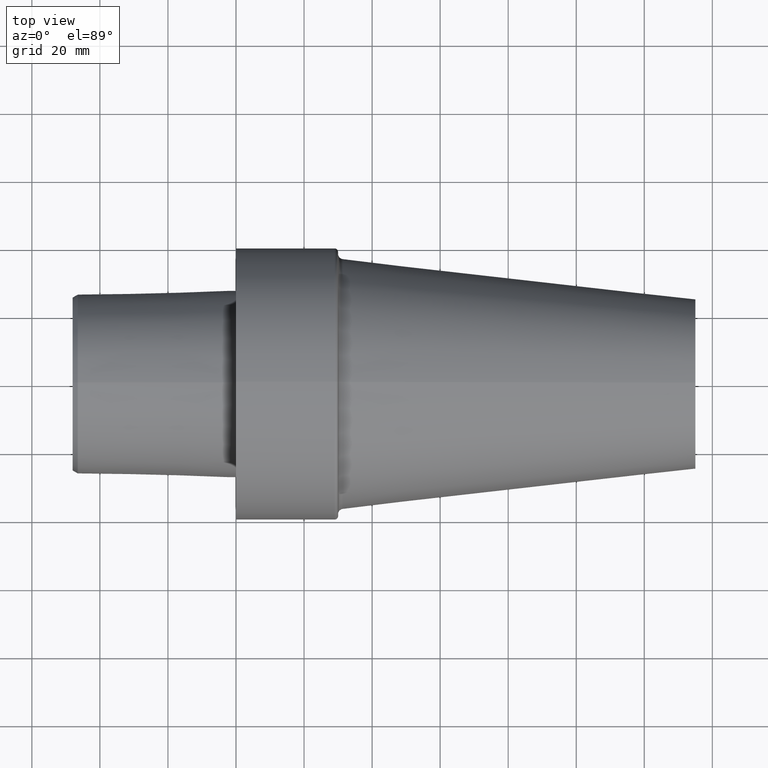
[diagram: clean part render]
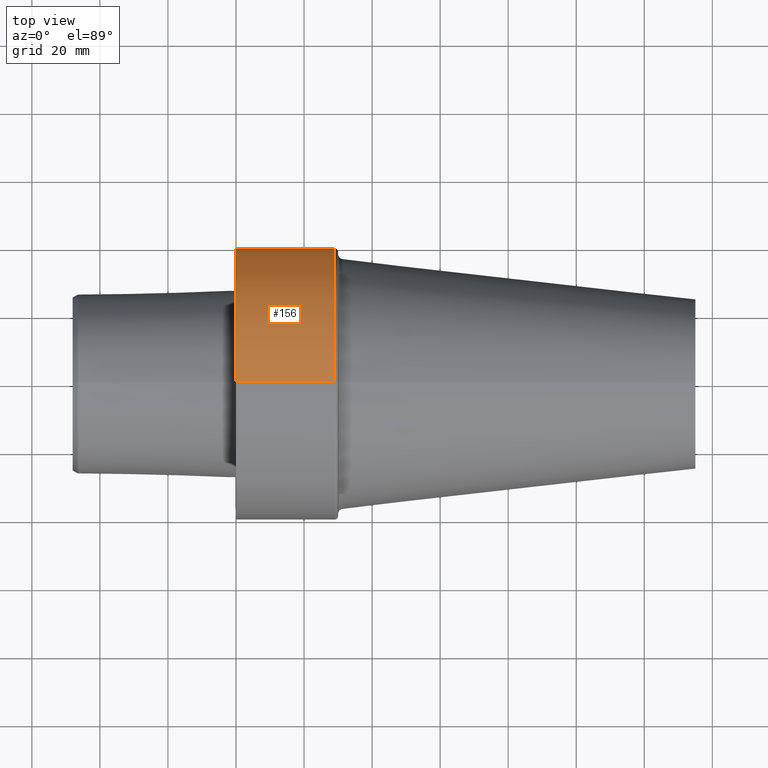
[diagram: same view with one face highlighted and labeled with its STEP entity id]
A machine part, top view. The second image highlights one B-rep face of the part: STEP entity #156.
In plain terms, the highlighted cylindrical surface (partial cylindrical patch) has radius 39.9925 mm, axis along (-1, 0, 0).
Its self-contained STEP definition (entity closure, byte-faithful):
#25 = DIRECTION ( 'NONE',  ( 0.000000000000000000, 0.000000000000000000, 1.000000000000000000 ) ) ;
#35 = DIRECTION ( 'NONE',  ( -1.000000000000000000, 0.000000000000000000, 0.000000000000000000 ) ) ;
#72 = CARTESIAN_POINT ( 'NONE',  ( 0.000000000000000000, 0.000000000000000000, 39.99249995920764889 ) ) ;
#75 = LINE ( 'NONE', #284, #213 ) ;
#111 = CARTESIAN_POINT ( 'NONE',  ( -47.99999995373141815, 0.000000000000000000, 0.000000000000000000 ) ) ;
#112 = AXIS2_PLACEMENT_3D ( 'NONE', #234, #309, #25 ) ;
#147 = CIRCLE ( 'NONE', #491, 39.99249995920764889 ) ;
#153 = DIRECTION ( 'NONE',  ( 0.000000000000000000, 0.000000000000000000, 1.000000000000000000 ) ) ;
#156 = ADVANCED_FACE ( 'NONE', ( #444 ), #480, .T. ) ;
#196 = EDGE_CURVE ( 'NONE', #440, #247, #75, .T. ) ;
#210 = CARTESIAN_POINT ( 'NONE',  ( 28.99999997041999933, 4.897668706494425201E-15, -39.99249995920764889 ) ) ;
#213 = VECTOR ( 'NONE', #447, 1000.000000000000000 ) ;
#234 = CARTESIAN_POINT ( 'NONE',  ( 28.99999997041999933, 0.000000000000000000, 0.000000000000000000 ) ) ;
#235 = CARTESIAN_POINT ( 'NONE',  ( 0.000000000000000000, 0.000000000000000000, 0.000000000000000000 ) ) ;
#237 = AXIS2_PLACEMENT_3D ( 'NONE', #111, #35, #441 ) ;
#242 = CARTESIAN_POINT ( 'NONE',  ( 28.99999997041999933, 0.000000000000000000, 39.99249995920764889 ) ) ;
#247 = VERTEX_POINT ( 'NONE', #72 ) ;
#279 = EDGE_CURVE ( 'NONE', #247, #297, #147, .T. ) ;
#282 = ORIENTED_EDGE ( 'NONE', *, *, #196, .F. ) ;
#284 = CARTESIAN_POINT ( 'NONE',  ( -47.99999995373141815, 0.000000000000000000, 39.99249995920764889 ) ) ;
#286 = ORIENTED_EDGE ( 'NONE', *, *, #279, .F. ) ;
#297 = VERTEX_POINT ( 'NONE', #484 ) ;
#309 = DIRECTION ( 'NONE',  ( -1.000000000000000000, 0.000000000000000000, 0.000000000000000000 ) ) ;
#325 = VECTOR ( 'NONE', #334, 1000.000000000000000 ) ;
#334 = DIRECTION ( 'NONE',  ( -1.000000000000000000, 0.000000000000000000, 0.000000000000000000 ) ) ;
#341 = EDGE_LOOP ( 'NONE', ( #515, #493, #286, #282 ) ) ;
#353 = EDGE_CURVE ( 'NONE', #419, #297, #497, .T. ) ;
#407 = DIRECTION ( 'NONE',  ( -1.000000000000000000, 0.000000000000000000, 0.000000000000000000 ) ) ;
#419 = VERTEX_POINT ( 'NONE', #210 ) ;
#440 = VERTEX_POINT ( 'NONE', #242 ) ;
#441 = DIRECTION ( 'NONE',  ( 0.000000000000000000, 0.000000000000000000, 1.000000000000000000 ) ) ;
#444 = FACE_OUTER_BOUND ( 'NONE', #341, .T. ) ;
#447 = DIRECTION ( 'NONE',  ( -1.000000000000000000, 0.000000000000000000, 0.000000000000000000 ) ) ;
#480 = CYLINDRICAL_SURFACE ( 'NONE', #237, 39.99249995920764889 ) ;
#484 = CARTESIAN_POINT ( 'NONE',  ( 0.000000000000000000, 4.897668706494425201E-15, -39.99249995920764889 ) ) ;
#491 = AXIS2_PLACEMENT_3D ( 'NONE', #235, #407, #153 ) ;
#493 = ORIENTED_EDGE ( 'NONE', *, *, #353, .T. ) ;
#497 = LINE ( 'NONE', #536, #325 ) ;
#505 = EDGE_CURVE ( 'NONE', #440, #419, #508, .T. ) ;
#508 = CIRCLE ( 'NONE', #112, 39.99249995920764889 ) ;
#515 = ORIENTED_EDGE ( 'NONE', *, *, #505, .T. ) ;
#536 = CARTESIAN_POINT ( 'NONE',  ( -47.99999995373141815, 4.897668706494425201E-15, -39.99249995920764889 ) ) ;